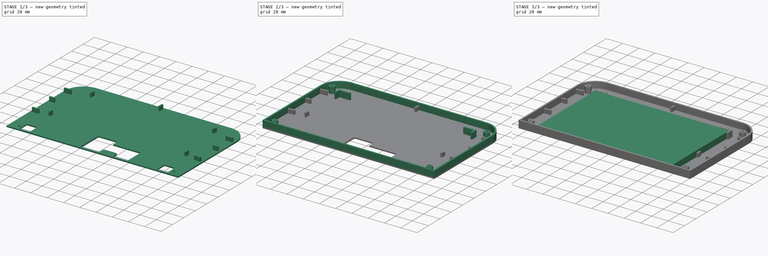
[diagram: build sequence overview — one tinted view per stage of 3, left to right]
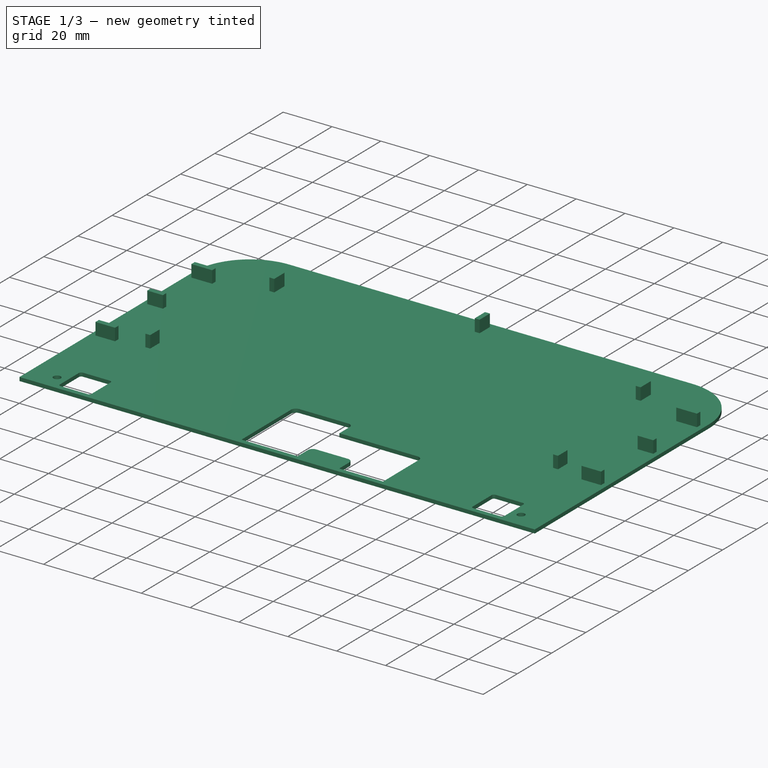
[diagram: stage 1 of 3 — iso view after this stage's code; geometry added in this stage tinted green]
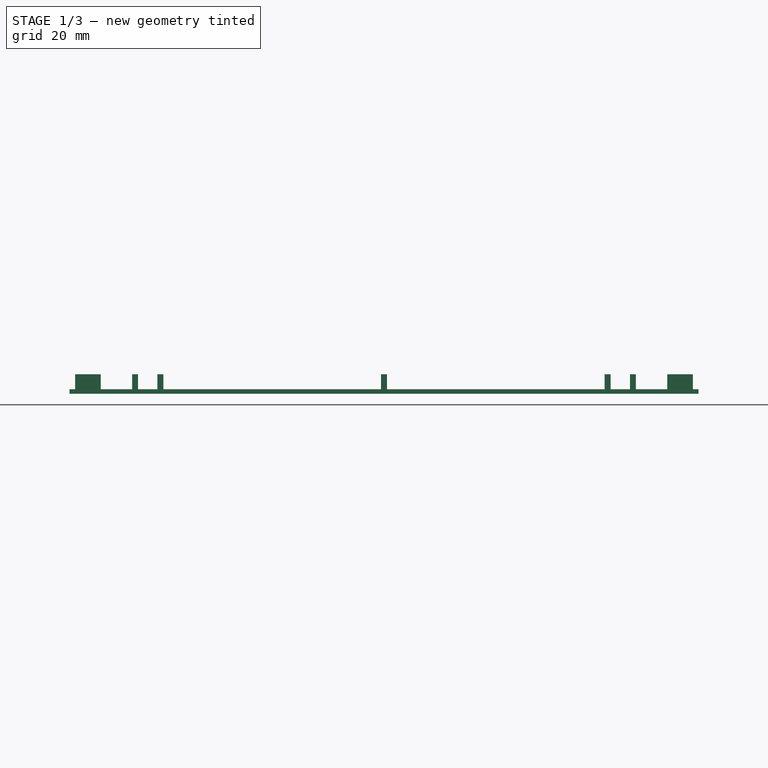
[diagram: stage 1 of 3 — front view after this stage's code; geometry added in this stage tinted green]
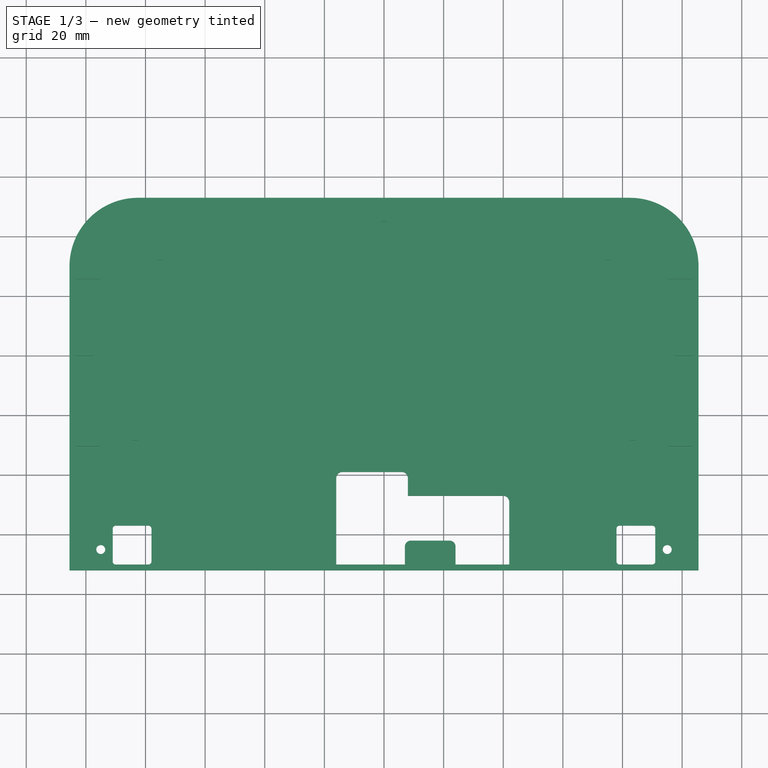
[diagram: stage 1 of 3 — top view after this stage's code; geometry added in this stage tinted green]
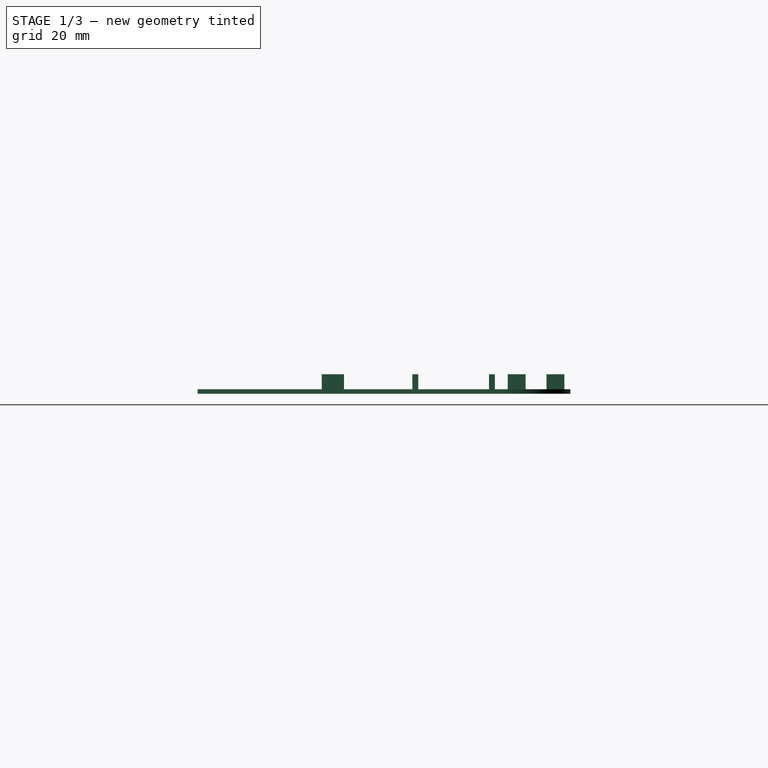
[diagram: stage 1 of 3 — right view after this stage's code; geometry added in this stage tinted green]
FCSTD DOCUMENT  (FreeCAD 0.21R33771 (Git))
Label: 6IN8SHELL-MAIN
License: All rights reserved
LicenseURL: http://en.wikipedia.org/wiki/All_rights_reserved
objects: Part::Feature×5, Sketcher::SketchObject×4, PartDesign::Body×4, PartDesign::Pad×2, Part::Extrusion×2, Part::MultiFuse×2
note: 21 computed .brp shape members not serialized (recipe doc carries the construction recipe); baked Part::Feature solids carry a one-line shape summary decoded from their .brp

FEATURE [PartDesign::Body] Body  label="Screen-6.8"
  Group = -> [Sketch,Pad]
  Origin = -> Origin
  Tip = -> Pad
FEATURE [Sketcher::SketchObject] Sketch002
  FullyConstrained = true
  MapMode = 5
  Support = -> [XY_Plane001]
  sketch-geometry (44):
    g0: LineSegment StartX=-105.5 StartY=-52 StartZ=0 EndX=105.5 EndY=-52 EndZ=0
    g1: LineSegment StartX=105.5 StartY=-52 StartZ=0 EndX=105.5 EndY=50 EndZ=0
    g2: LineSegment StartX=-105.5 StartY=-52 StartZ=0 EndX=-105.5 EndY=50 EndZ=0
    g3: LineSegment StartX=-82.5 StartY=73 StartZ=0 EndX=82.5 EndY=73 EndZ=0
    g4: ArcOfCircle CenterX=-82.5 CenterY=50 CenterZ=0 NormalX=0 NormalY=0 NormalZ=1 AngleXU=0 Radius=23 StartAngle=1.5708 EndAngle=3.14159
    g5: ArcOfCircle CenterX=82.5 CenterY=50 CenterZ=0 NormalX=0 NormalY=0 NormalZ=1 AngleXU=0 Radius=23 StartAngle=0 EndAngle=1.5708
    g6: LineSegment StartX=-14 StartY=-19 StartZ=0 EndX=6 EndY=-19 EndZ=0
    g7: ArcOfCircle CenterX=-14 CenterY=-21 CenterZ=0 NormalX=0 NormalY=0 NormalZ=1 AngleXU=0 Radius=2 StartAngle=1.5708 EndAngle=3.14159
    g8: ArcOfCircle CenterX=40 CenterY=-29 CenterZ=0 NormalX=0 NormalY=0 NormalZ=1 AngleXU=0 Radius=2 StartAngle=6e-16 EndAngle=1.5708
    g9: LineSegment StartX=42 StartY=-29 StartZ=0 EndX=42 EndY=-50 EndZ=0
    g10: LineSegment StartX=22 StartY=-42 StartZ=0 EndX=9 EndY=-42 EndZ=0
    g11: LineSegment StartX=-16 StartY=-50 StartZ=0 EndX=-16 EndY=-21 EndZ=0
    g12: GeomPoint X=42 Y=-42 Z=0
    g13: Circle CenterX=-95 CenterY=-45 CenterZ=0 NormalX=0 NormalY=0 NormalZ=1 AngleXU=0 Radius=1.5
    g14: Circle CenterX=95 CenterY=-45 CenterZ=0 NormalX=0 NormalY=0 NormalZ=1 AngleXU=0 Radius=1.5
    g15: ArcOfCircle CenterX=-90 CenterY=-38 CenterZ=0 NormalX=0 NormalY=0 NormalZ=1 AngleXU=0 Radius=1 StartAngle=1.5708 EndAngle=3.14159
    g16: LineSegment StartX=-90 StartY=-37 StartZ=0 EndX=-79 EndY=-37 EndZ=0
    g17: ArcOfCircle CenterX=-79 CenterY=-38 CenterZ=0 NormalX=0 NormalY=0 NormalZ=1 AngleXU=0 Radius=1 StartAngle=3.6e-15 EndAngle=1.5708
    g18: LineSegment StartX=-78 StartY=-38 StartZ=0 EndX=-78 EndY=-49 EndZ=0
    g19: ArcOfCircle CenterX=-79 CenterY=-49 CenterZ=0 NormalX=0 NormalY=0 NormalZ=1 AngleXU=0 Radius=1 StartAngle=4.71239 EndAngle=6.28319
    g20: LineSegment StartX=-79 StartY=-50 StartZ=0 EndX=-90 EndY=-50 EndZ=0
    g21: ArcOfCircle CenterX=-90 CenterY=-49 CenterZ=0 NormalX=0 NormalY=0 NormalZ=1 AngleXU=0 Radius=1 StartAngle=3.14159 EndAngle=4.71239
    g22: LineSegment StartX=-91 StartY=-49 StartZ=0 EndX=-91 EndY=-38 EndZ=0
    g23: GeomPoint X=-91 Y=-37 Z=0
    g24: GeomPoint X=-78 Y=-50 Z=0
    g25: ArcOfCircle CenterX=90 CenterY=-38 CenterZ=0 NormalX=0 NormalY=0 NormalZ=1 AngleXU=0 Radius=1 StartAngle=-1.8e-15 EndAngle=1.5708
    g26: LineSegment StartX=90 StartY=-37 StartZ=0 EndX=79 EndY=-37 EndZ=0
    g27: ArcOfCircle CenterX=79 CenterY=-38 CenterZ=0 NormalX=0 NormalY=0 NormalZ=1 AngleXU=0 Radius=1 StartAngle=1.5708 EndAngle=3.14159
    g28: LineSegment StartX=78 StartY=-38 StartZ=0 EndX=78 EndY=-49 EndZ=0
    g29: ArcOfCircle CenterX=79 CenterY=-49 CenterZ=0 NormalX=0 NormalY=0 NormalZ=1 AngleXU=0 Radius=1 StartAngle=3.14159 EndAngle=4.71239
    g30: LineSegment StartX=79 StartY=-50 StartZ=0 EndX=90 EndY=-50 EndZ=0
    g31: ArcOfCircle CenterX=90 CenterY=-49 CenterZ=0 NormalX=0 NormalY=0 NormalZ=1 AngleXU=0 Radius=1 StartAngle=4.71239 EndAngle=6.28319
    g32: LineSegment StartX=91 StartY=-49 StartZ=0 EndX=91 EndY=-38 EndZ=0
    g33: GeomPoint X=91 Y=-37 Z=0
    g34: GeomPoint X=78 Y=-50 Z=0
    g35: ArcOfCircle CenterX=22 CenterY=-44 CenterZ=0 NormalX=0 NormalY=0 NormalZ=1 AngleXU=0 Radius=2 StartAngle=6.28318 EndAngle=7.85398
    g36: LineSegment StartX=24 StartY=-44 StartZ=0 EndX=24 EndY=-50 EndZ=0
    g37: LineSegment StartX=24 StartY=-50 StartZ=0 EndX=42 EndY=-50 EndZ=0
    g38: LineSegment StartX=-16 StartY=-50 StartZ=0 EndX=7 EndY=-50 EndZ=0
    g39: ArcOfCircle CenterX=9 CenterY=-44 CenterZ=0 NormalX=0 NormalY=0 NormalZ=1 AngleXU=0 Radius=2 StartAngle=1.5708 EndAngle=3.1416
    g40: LineSegment StartX=7 StartY=-44 StartZ=0 EndX=7 EndY=-50 EndZ=0
    g41: LineSegment StartX=40 StartY=-27 StartZ=0 EndX=8 EndY=-27 EndZ=0
    g42: ArcOfCircle CenterX=6 CenterY=-21 CenterZ=0 NormalX=0 NormalY=0 NormalZ=1 AngleXU=0 Radius=2 StartAngle=6e-16 EndAngle=1.5708
    g43: LineSegment StartX=8 StartY=-21 StartZ=0 EndX=8 EndY=-27 EndZ=0
  constraints (117):
    c: Coincident(g1,g0)
    c: Vertical(g1)
    c: Coincident(g0,g2)
    c: Symmetric(g0,g0,g-2)
    c: DistanceY(g0,g-1) = 52
    c: DistanceX(g0,g-1) = 105.5
    c: Symmetric(g3,g3,g-2)
    c: DistanceY(g-1,g3) = 73
    c: Coincident(g2,g4)
    c: Coincident(g4,g3)
    c: DistanceX(g4,g-1) = 82.5
    c: Equal(g2,g1)
    c: DistanceY(g-1,g2) = 50
    c: Coincident(g5,g1)
    c: Coincident(g5,g3)
    c: Symmetric(g5,g4,g-2)
    c: Horizontal(g6)
    c: Tangent(g5,g3,g3) = 1.5708
    c: Tangent(g8,g9) = 1.5708
    c: Tangent(g11,g7) = 1.5708
    c: Horizontal(g10)
    c: Vertical(g9)
    c: Vertical(g11)
    c: Equal(g7,g8)
    c: PointOnObject(g12,g9)
    c: PointOnObject(g12,g10)
    c: DistanceY(g0,g10) = 10
    c: Radius(g13) = 1.5
    c: DistanceX(g13,g-1) = 95
    c: DistanceY(g13,g-1) = 45
    c: Symmetric(g13,g14,g-2)
    c: Tangent(g15,g16) = 1.5708
    c: Tangent(g16,g17) = 1.5708
    c: Tangent(g17,g18) = 1.5708
    c: Tangent(g18,g19) = 1.5708
    c: Tangent(g19,g20) = 1.5708
    c: Tangent(g20,g21) = 1.5708
    c: Tangent(g21,g22) = 1.5708
    c: Tangent(g22,g15) = 1.5708
    c: Horizontal(g16)
    c: Horizontal(g20)
    c: Vertical(g18)
    c: Vertical(g22)
    c: Equal(g15,g17)
    c: Equal(g17,g19)
    c: Equal(g19,g21)
    c: PointOnObject(g23,g16)
    c: PointOnObject(g23,g22)
    c: PointOnObject(g24,g18)
    c: PointOnObject(g24,g20)
    c: DistanceY(g22,g22) = 11
    c: DistanceX(g16,g16) = 11
    c: Radius(g15) = 1
    c: DistanceX(g13,g21) = 4
    c: DistanceY(g13,g15) = 7
    c: Equal(g13,g14)
    c: Tangent(g25,g26) = -1.5708
    c: Tangent(g26,g27) = -1.5708
    c: Tangent(g27,g28) = -1.5708
    c: Tangent(g28,g29) = -1.5708
    c: Tangent(g29,g30) = -1.5708
    c: Tangent(g30,g31) = -1.5708
    c: Tangent(g31,g32) = -1.5708
    c: Tangent(g32,g25) = -1.5708
    c: Horizontal(g26)
    c: Horizontal(g30)
    c: Vertical(g28)
    c: Vertical(g32)
    c: Equal(g25,g27)
    c: Equal(g27,g29)
    c: Equal(g29,g31)
    c: PointOnObject(g33,g26)
    c: PointOnObject(g33,g32)
    c: PointOnObject(g34,g28)
    c: PointOnObject(g34,g30)
    c: Radius(g25) = 1
    c: Symmetric(g27,g17,g-2)
    c: DistanceY(g28,g28) = 11
    c: DistanceX(g26,g26) = 11
    c: DistanceY(g9,g9) = 21
    c: Coincident(g35,g10)
    c: Radius(g35) = 2
    c: Tangent(g10,g35,g10) = -1.5708
    c: Coincident(g36,g35)
    c: Vertical(g36)
    c: Coincident(g37,g36)
    c: Coincident(g37,g9)
    c: Horizontal(g37)
    c: DistanceY(g36,g36) = 6
    c: DistanceX(g37,g37) = 18
    c: DistanceX(g-1,g36) = 24
    c: DistanceX(g7,g-1) = 16
    c: DistanceX(g10,g10) = 13
    c: DistanceY(g11,g11) = 29
    c: Coincident(g38,g11)
    c: Horizontal(g38)
    c: Coincident(g39,g10)
    c: Radius(g39) = 2
    c: Tangent(g10,g39,g10) = -1.5708
    c: Coincident(g40,g39)
    c: Vertical(g40)
    c: Coincident(g38,g40)
    c: DistanceX(g38,g38) = 23
    c: Horizontal(g41)
    c: DistanceY(g38,g39) = 6
    c: Coincident(g42,g6)
    c: Radius(g42) = 2
    c: Tangent(g6,g42,g6) = 1.5708
    c: Vertical(g43)
    c: Tangent(g42,g43) = 1.5708
    c: Coincident(g41,g43)
    c: DistanceY(g43,g43) = 6
    c: DistanceX(g41,g41) = 32
    c: Tangent(g41,g8) = -1.5708
    c: Coincident(g6,g7)
    c: DistanceX(g6,g6) = 20
    c: Radius(g7) = 2
FEATURE [PartDesign::Pad] Pad001
  Direction = (0,0,1)
  Length = 1.5
  Length2 = 10
  Profile = -> Sketch002
  ReferenceAxis = -> Sketch002 [N_Axis]
  Reversed = true
  Type = 0
FEATURE [PartDesign::Body] Body002
  Group = -> [Sketch003]
  Origin = -> Origin002
FEATURE [Sketcher::SketchObject] Sketch004
  FullyConstrained = true
  MapMode = 5
  Support = -> [XY_Plane003]
  sketch-geometry (45):
    g0: LineSegment StartX=-103.5 StartY=47.7 StartZ=0 EndX=-95 EndY=47.7 EndZ=0
    g1: LineSegment StartX=-95 StartY=47.7 StartZ=0 EndX=-95 EndY=45.7 EndZ=0
    g2: LineSegment StartX=-95 StartY=45.7 StartZ=0 EndX=-103.5 EndY=45.7 EndZ=0
    g3: LineSegment StartX=-103.5 StartY=45.7 StartZ=0 EndX=-103.5 EndY=47.7 EndZ=0
    g4: LineSegment StartX=103.5 StartY=47.7 StartZ=0 EndX=95 EndY=47.7 EndZ=0
    g5: LineSegment StartX=95 StartY=47.7 StartZ=0 EndX=95 EndY=45.7 EndZ=0
    g6: LineSegment StartX=95 StartY=45.7 StartZ=0 EndX=103.5 EndY=45.7 EndZ=0
    g7: LineSegment StartX=103.5 StartY=45.7 StartZ=0 EndX=103.5 EndY=47.7 EndZ=0
    g8: LineSegment StartX=-103.5 StartY=-8.4 StartZ=0 EndX=-95.5 EndY=-8.4 EndZ=0
    g9: LineSegment StartX=-95.5 StartY=-8.4 StartZ=0 EndX=-95.5 EndY=-10.4 EndZ=0
    g10: LineSegment StartX=-95.5 StartY=-10.4 StartZ=0 EndX=-103.5 EndY=-10.4 EndZ=0
    g11: LineSegment StartX=-103.5 StartY=-10.4 StartZ=0 EndX=-103.5 EndY=-8.4 EndZ=0
    g12: LineSegment StartX=-84.5 StartY=-2.9 StartZ=0 EndX=-82.5 EndY=-2.9 EndZ=0
    g13: LineSegment StartX=-82.5 StartY=-2.9 StartZ=0 EndX=-82.5 EndY=-8.4 EndZ=0
    g14: LineSegment StartX=-82.5 StartY=-8.4 StartZ=0 EndX=-84.5 EndY=-8.4 EndZ=0
    g15: LineSegment StartX=-84.5 StartY=-8.4 StartZ=0 EndX=-84.5 EndY=-2.9 EndZ=0
    g16: LineSegment StartX=103.5 StartY=-8.4 StartZ=0 EndX=95.5 EndY=-8.4 EndZ=0
    g17: LineSegment StartX=95.5 StartY=-8.4 StartZ=0 EndX=95.5 EndY=-10.4 EndZ=0
    g18: LineSegment StartX=95.5 StartY=-10.4 StartZ=0 EndX=103.5 EndY=-10.4 EndZ=0
    g19: LineSegment StartX=103.5 StartY=-10.4 StartZ=0 EndX=103.5 EndY=-8.4 EndZ=0
    g20: LineSegment StartX=84.5 StartY=-2.9 StartZ=0 EndX=82.5 EndY=-2.9 EndZ=0
    g21: LineSegment StartX=82.5 StartY=-2.9 StartZ=0 EndX=82.5 EndY=-8.4 EndZ=0
    g22: LineSegment StartX=82.5 StartY=-8.4 StartZ=0 EndX=84.5 EndY=-8.4 EndZ=0
    g23: LineSegment StartX=84.5 StartY=-8.4 StartZ=0 EndX=84.5 EndY=-2.9 EndZ=0
    g24: LineSegment StartX=-76 StartY=58 StartZ=0 EndX=-74 EndY=58 EndZ=0
    g25: LineSegment StartX=-74 StartY=58 StartZ=0 EndX=-74 EndY=52 EndZ=0
    g26: LineSegment StartX=-74 StartY=52 StartZ=0 EndX=-76 EndY=52 EndZ=0
    g27: LineSegment StartX=-76 StartY=52 StartZ=0 EndX=-76 EndY=58 EndZ=0
    g28: LineSegment StartX=76 StartY=58 StartZ=0 EndX=74 EndY=58 EndZ=0
    g29: LineSegment StartX=74 StartY=58 StartZ=0 EndX=74 EndY=52 EndZ=0
    g30: LineSegment StartX=74 StartY=52 StartZ=0 EndX=76 EndY=52 EndZ=0
    g31: LineSegment StartX=76 StartY=52 StartZ=0 EndX=76 EndY=58 EndZ=0
    g32: LineSegment StartX=-103.6 StartY=22 StartZ=0 EndX=-97.2 EndY=22 EndZ=0
    g33: LineSegment StartX=-97.2 StartY=22 StartZ=0 EndX=-97.2 EndY=20 EndZ=0
    g34: LineSegment StartX=-97.2 StartY=20 StartZ=0 EndX=-103.6 EndY=20 EndZ=0
    g35: LineSegment StartX=-103.6 StartY=20 StartZ=0 EndX=-103.6 EndY=22 EndZ=0
    g36: LineSegment StartX=103.6 StartY=22 StartZ=0 EndX=97.2 EndY=22 EndZ=0
    g37: LineSegment StartX=97.2 StartY=22 StartZ=0 EndX=97.2 EndY=20 EndZ=0
    g38: LineSegment StartX=97.2 StartY=20 StartZ=0 EndX=103.6 EndY=20 EndZ=0
    g39: LineSegment StartX=103.6 StartY=20 StartZ=0 EndX=103.6 EndY=22 EndZ=0
    g40: LineSegment StartX=-1 StartY=71 StartZ=0 EndX=-1 EndY=65 EndZ=0
    g41: LineSegment StartX=-1 StartY=65 StartZ=0 EndX=1 EndY=65 EndZ=0
    g42: LineSegment StartX=1 StartY=65 StartZ=0 EndX=1 EndY=71 EndZ=0
    g43: LineSegment StartX=1 StartY=71 StartZ=0 EndX=-1 EndY=71 EndZ=0
    g44: GeomPoint X=0 Y=68 Z=0
  constraints (133):
    c: Coincident(g0,g1)
    c: Coincident(g1,g2)
    c: Coincident(g2,g3)
    c: Coincident(g3,g0)
    c: Horizontal(g0)
    c: Horizontal(g2)
    c: Vertical(g1)
    c: Vertical(g3)
    c: DistanceY(g1,g1) = 2
    c: DistanceX(g2,g2) = 8.5
    c: DistanceX(g2,g-1) = 103.5
    c: DistanceY(g-1,g1) = 45.7
    c: Coincident(g4,g5)
    c: Coincident(g5,g6)
    c: Coincident(g6,g7)
    c: Coincident(g7,g4)
    c: Horizontal(g4)
    c: Horizontal(g6)
    c: Vertical(g5)
    c: Vertical(g7)
    c: DistanceX(g4,g4) = 8.5
    c: DistanceY(g5,g5) = 2
    c: DistanceX(g-1,g6) = 103.5
    c: DistanceY(g-1,g6) = 45.7
    c: Coincident(g8,g9)
    c: Coincident(g9,g10)
    c: Coincident(g10,g11)
    c: Coincident(g11,g8)
    c: Horizontal(g8)
    c: Horizontal(g10)
    c: Vertical(g9)
    c: Vertical(g11)
    c: Coincident(g12,g13)
    c: Coincident(g13,g14)
    c: Coincident(g14,g15)
    c: Coincident(g15,g12)
    c: Horizontal(g12)
    c: Horizontal(g14)
    c: Vertical(g13)
    c: Vertical(g15)
    c: DistanceX(g12,g12) = 2
    c: DistanceX(g12,g-1) = 84.5
    c: DistanceY(g13,g13) = 5.5
    c: DistanceY(g9,g9) = 2
    c: DistanceX(g8,g8) = 8
    c: DistanceX(g8,g-1) = 95.5
    c: DistanceY(g8,g-1) = 8.4
    c: Horizontal(g8,g14)
    c: Coincident(g16,g17)
    c: Coincident(g17,g18)
    c: Coincident(g18,g19)
    c: Coincident(g19,g16)
    c: Horizontal(g16)
    c: Horizontal(g18)
    c: Vertical(g17)
    c: Vertical(g19)
    c: Coincident(g20,g21)
    c: Coincident(g21,g22)
    c: Coincident(g22,g23)
    c: Coincident(g23,g20)
    c: Horizontal(g20)
    c: Horizontal(g22)
    c: Vertical(g21)
    c: Vertical(g23)
    c: DistanceX(g20,g20) = 2
    c: DistanceY(g21,g21) = 5.5
    c: DistanceY(g17,g17) = 2
    c: DistanceX(g16,g16) = 8
    c: Horizontal(g22,g16)
    c: DistanceY(g17,g-1) = 10.4
    c: DistanceX(g-1,g17) = 95.5
    c: DistanceX(g22,g16) = 11
    c: Coincident(g24,g25)
    c: Coincident(g25,g26)
    c: Coincident(g26,g27)
    c: Coincident(g27,g24)
    c: Horizontal(g24)
    c: Horizontal(g26)
    c: Vertical(g25)
    c: Vertical(g27)
    c: DistanceX(g24,g24) = 2
    c: DistanceY(g27,g27) = 6
    c: DistanceY(g-1,g25) = 52
    c: DistanceX(g25,g-1) = 74
    c: Coincident(g28,g29)
    c: Coincident(g29,g30)
    c: Coincident(g30,g31)
    c: Coincident(g31,g28)
    c: Horizontal(g28)
    c: Horizontal(g30)
    c: Vertical(g29)
    c: Vertical(g31)
    c: DistanceX(g-1,g29) = 74
    c: DistanceY(g-1,g29) = 52
    c: DistanceX(g28,g28) = 2
    c: DistanceY(g31,g31) = 6
    c: Coincident(g32,g33)
    c: Coincident(g33,g34)
    c: Coincident(g34,g35)
    c: Coincident(g35,g32)
    c: Horizontal(g32)
    c: Horizontal(g34)
    c: Vertical(g33)
    c: Vertical(g35)
    c: DistanceY(g33,g33) = 2
    c: DistanceX(g32,g32) = 6.4
    c: DistanceY(g-1,g33) = 20
    c: DistanceX(g33,g-1) = 97.2
    c: Coincident(g36,g37)
    c: Coincident(g37,g38)
    c: Coincident(g38,g39)
    c: Coincident(g39,g36)
    c: Horizontal(g36)
    c: Horizontal(g38)
    c: Vertical(g37)
    c: Vertical(g39)
    c: DistanceY(g37,g37) = 2
    c: DistanceX(g36,g36) = 6.4
    c: DistanceX(g37) = 97.2
    c: DistanceY(g37) = 20
    c: Coincident(g40,g41)
    c: Coincident(g41,g42)
    c: Coincident(g42,g43)
    c: Coincident(g43,g40)
    c: Horizontal(g41)
    c: Horizontal(g43)
    c: Vertical(g40)
    c: Vertical(g42)
    c: Symmetric(g41,g40,g44)
    c: PointOnObject(g44,g-2)
    c: DistanceY(g42,g42) = 6
    c: DistanceX(g41,g41) = 2
    c: DistanceY(g-1,g40) = 65
FEATURE [Part::Extrusion] Extrude001
  Base = -> Sketch004
  Dir = (0,0,1)
  DirMode = 2
  FaceMakerClass = Part::FaceMakerBullseye
  LengthFwd = 5
  LengthRev = 0
  Solid = true
  Symmetric = false
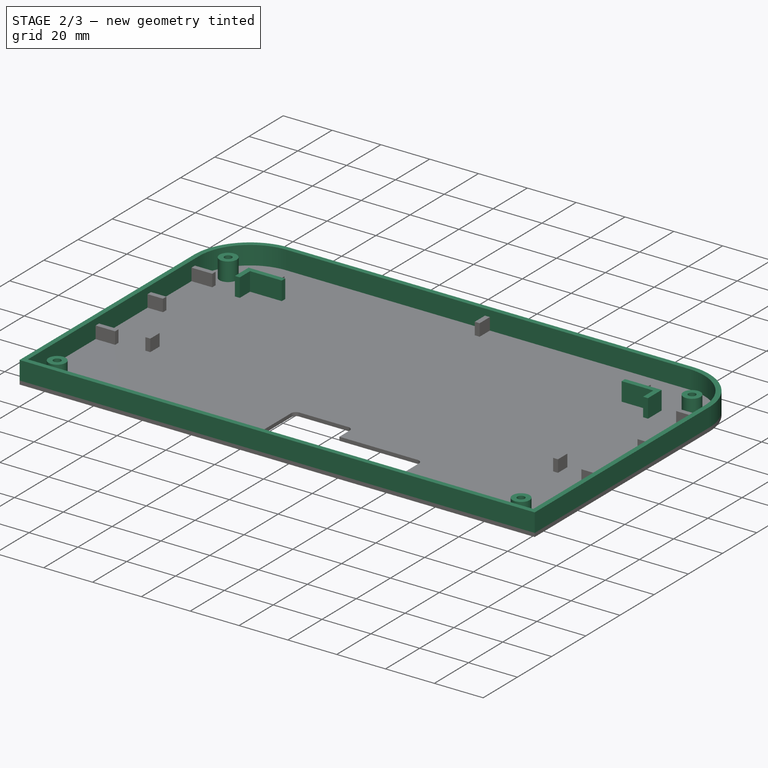
[diagram: stage 2 of 3 — iso view after this stage's code; geometry added in this stage tinted green]
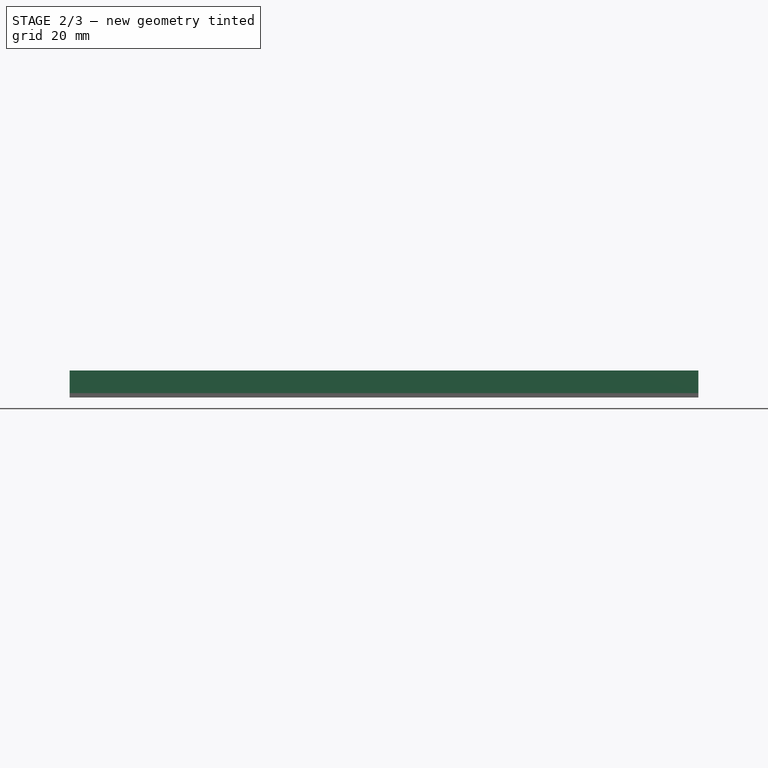
[diagram: stage 2 of 3 — front view after this stage's code; geometry added in this stage tinted green]
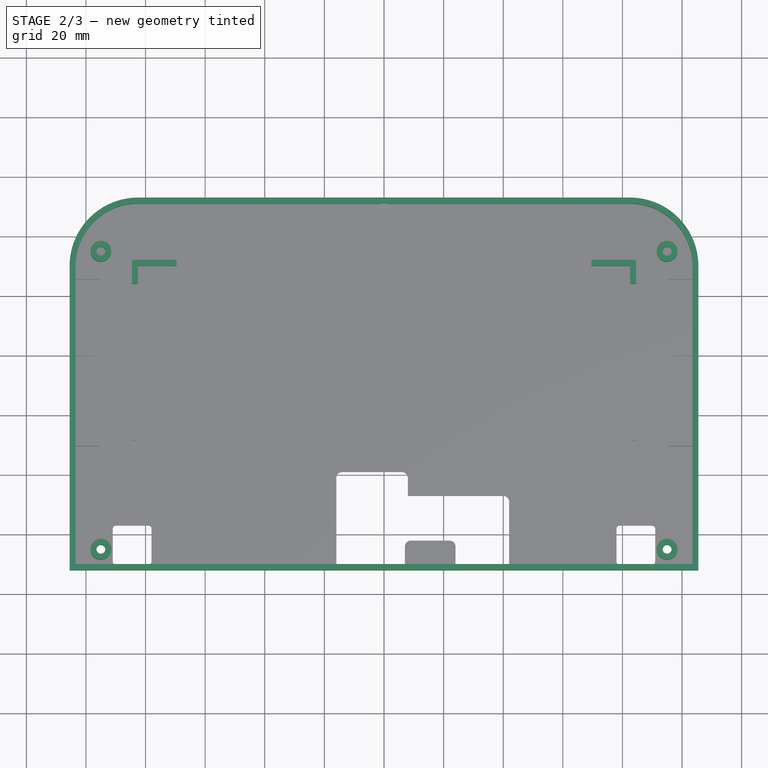
[diagram: stage 2 of 3 — top view after this stage's code; geometry added in this stage tinted green]
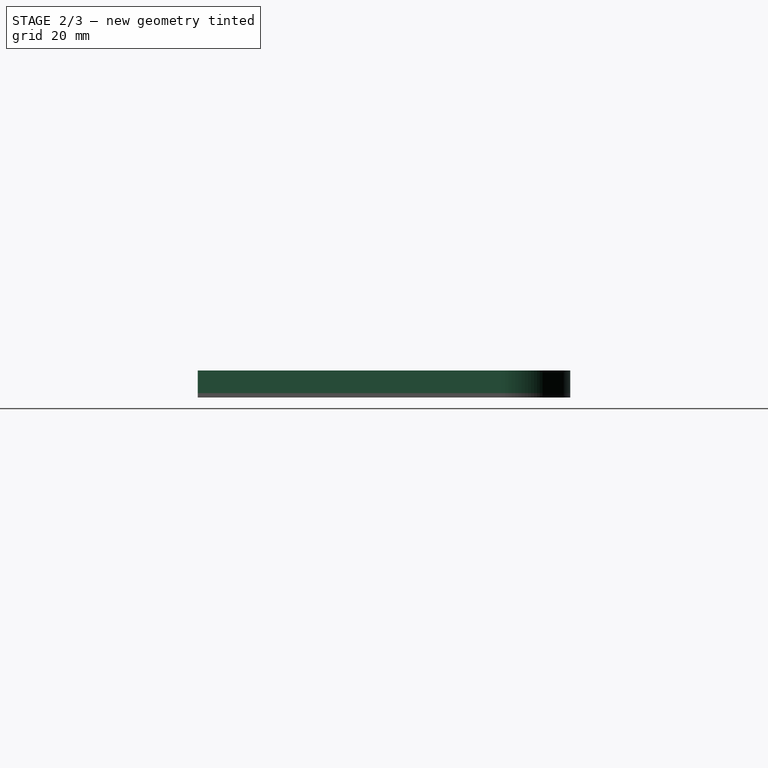
[diagram: stage 2 of 3 — right view after this stage's code; geometry added in this stage tinted green]
FEATURE [PartDesign::Body] Body001  label="Body"
  Group = -> [Sketch002,Pad001]
  Origin = -> Origin001
  Tip = -> Pad001
FEATURE [Part::Feature] Part__Feature  label="TOP"
  Placement = pos=(0,0,7.4) rot=(0,0,1;0rad)
  shape: bbox 216 x 127.5 x 17 mm, 79 faces (baked)
  expr: .Placement.Base.z = 7.4
FEATURE [Part::Feature] Part__Feature001  label="FORT5-L"
  Placement = pos=(-90.88,39.6,2) rot=(0,0,1;1.5708rad)
  shape: bbox 12.5 x 54.25 x 6.8 mm, 36 faces (baked)
FEATURE [Part::Feature] Part__Feature002  label="FORT5-R"
  Placement = pos=(90.88,39.6,2) rot=(0,0,1;1.5708rad)
  shape: bbox 12.5 x 54.25 x 6.8 mm, 36 faces (baked)
FEATURE [Part::Feature] Part__Feature003  label="FORT14"
  Placement = pos=(68,59,0) rot=(0,0,1;0rad)
  shape: bbox 148.3 x 12.45 x 6.8 mm, 72 faces (baked)
FEATURE [Part::Feature] Part__Feature004  label="BACK"
  Placement = pos=(0,0,-1.5) rot=(0,1,0;3.14159rad)
  shape: bbox 211 x 40 x 18 mm, 59 faces (baked)
FEATURE [Sketcher::SketchObject] Sketch003
  FullyConstrained = true
  MapMode = 5
  Support = -> [XY_Plane002]
  sketch-geometry (32):
    g0: LineSegment StartX=-105.5 StartY=-52 StartZ=0 EndX=105.5 EndY=-52 EndZ=0
    g1: LineSegment StartX=105.5 StartY=-52 StartZ=0 EndX=105.5 EndY=50 EndZ=0
    g2: LineSegment StartX=-105.5 StartY=-52 StartZ=0 EndX=-105.5 EndY=50 EndZ=0
    g3: LineSegment StartX=-82.5 StartY=73 StartZ=0 EndX=82.5 EndY=73 EndZ=0
    g4: ArcOfCircle CenterX=-82.5 CenterY=50 CenterZ=0 NormalX=0 NormalY=0 NormalZ=1 AngleXU=0 Radius=23 StartAngle=1.5708 EndAngle=3.14159
    g5: ArcOfCircle CenterX=82.5 CenterY=50 CenterZ=0 NormalX=0 NormalY=0 NormalZ=1 AngleXU=0 Radius=23 StartAngle=1e-16 EndAngle=1.5708
    g6: LineSegment StartX=-103.5 StartY=-50 StartZ=0 EndX=103.5 EndY=-50 EndZ=0
    g7: LineSegment StartX=103.5 StartY=-50 StartZ=0 EndX=103.5 EndY=50 EndZ=0
    g8: LineSegment StartX=-103.5 StartY=-50 StartZ=0 EndX=-103.5 EndY=50 EndZ=0
    g9: ArcOfCircle CenterX=-82.5 CenterY=50 CenterZ=0 NormalX=0 NormalY=0 NormalZ=1 AngleXU=0 Radius=21 StartAngle=1.5708 EndAngle=3.14159
    g10: ArcOfCircle CenterX=82.5 CenterY=50 CenterZ=0 NormalX=0 NormalY=0 NormalZ=1 AngleXU=0 Radius=21 StartAngle=0 EndAngle=1.5708
    g11: LineSegment StartX=-82.5 StartY=71 StartZ=0 EndX=82.5 EndY=71 EndZ=0
    g12: LineSegment StartX=-84.6 StartY=44.1 StartZ=0 EndX=-82.6 EndY=44.1 EndZ=0
    g13: LineSegment StartX=-82.6 StartY=44.1 StartZ=0 EndX=-82.6 EndY=50.1 EndZ=0
    g14: LineSegment StartX=-84.6 StartY=52.1 StartZ=0 EndX=-84.6 EndY=44.1 EndZ=0
    g15: LineSegment StartX=-84.6 StartY=52.1 StartZ=0 EndX=-69.6 EndY=52.1 EndZ=0
    g16: LineSegment StartX=-69.6 StartY=52.1 StartZ=0 EndX=-69.6 EndY=50.1 EndZ=0
    g17: LineSegment StartX=-69.6 StartY=50.1 StartZ=0 EndX=-82.6 EndY=50.1 EndZ=0
    g18: LineSegment StartX=84.6 StartY=44.1 StartZ=0 EndX=82.6 EndY=44.1 EndZ=0
    g19: LineSegment StartX=82.6 StartY=44.1 StartZ=0 EndX=82.6 EndY=50.1 EndZ=0
    g20: LineSegment StartX=84.6 StartY=52.1 StartZ=0 EndX=84.6 EndY=44.1 EndZ=0
    g21: LineSegment StartX=84.6 StartY=52.1 StartZ=0 EndX=69.6 EndY=52.1 EndZ=0
    g22: LineSegment StartX=69.6 StartY=52.1 StartZ=0 EndX=69.6 EndY=50.1 EndZ=0
    g23: LineSegment StartX=69.6 StartY=50.1 StartZ=0 EndX=82.6 EndY=50.1 EndZ=0
    g24: Circle CenterX=-95 CenterY=-45 CenterZ=0 NormalX=0 NormalY=0 NormalZ=1 AngleXU=0 Radius=1.5
    g25: Circle CenterX=-95 CenterY=-45 CenterZ=0 NormalX=0 NormalY=0 NormalZ=1 AngleXU=0 Radius=3.5
    g26: Circle CenterX=95 CenterY=-45 CenterZ=0 NormalX=0 NormalY=0 NormalZ=1 AngleXU=0 Radius=1.5
    g27: Circle CenterX=95 CenterY=-45 CenterZ=0 NormalX=0 NormalY=0 NormalZ=1 AngleXU=0 Radius=3.5
    g28: Circle CenterX=-95 CenterY=55 CenterZ=0 NormalX=0 NormalY=0 NormalZ=1 AngleXU=0 Radius=1.5
    g29: Circle CenterX=-95 CenterY=55 CenterZ=0 NormalX=0 NormalY=0 NormalZ=1 AngleXU=0 Radius=3.5
    g30: Circle CenterX=95 CenterY=55 CenterZ=0 NormalX=0 NormalY=0 NormalZ=1 AngleXU=0 Radius=1.5
    g31: Circle CenterX=95 CenterY=55 CenterZ=0 NormalX=0 NormalY=0 NormalZ=1 AngleXU=0 Radius=3.5
  constraints (90):
    c: Coincident(g1,g0)
    c: Vertical(g1)
    c: Coincident(g0,g2)
    c: Symmetric(g0,g0,g-2)
    c: DistanceY(g0,g-1) = 52
    c: DistanceX(g0,g-1) = 105.5
    c: Symmetric(g3,g3,g-2)
    c: DistanceY(g-1,g3) = 73
    c: Coincident(g2,g4)
    c: Coincident(g4,g3)
    c: DistanceX(g4,g-1) = 82.5
    c: Equal(g2,g1)
    c: DistanceY(g-1,g2) = 50
    c: Coincident(g5,g1)
    c: Coincident(g5,g3)
    c: Symmetric(g5,g4,g-2)
    c: Tangent(g5,g3,g3) = 1.5708
    c: Horizontal(g6)
    c: Coincident(g7,g6)
    c: Vertical(g7)
    c: Coincident(g8,g6)
    c: Vertical(g8)
    c: DistanceX(g6,g-1) = 103.5
    c: DistanceY(g6,g-1) = 50
    c: Symmetric(g8,g7,g-2)
    c: DistanceY(g8,g8) = 100
    c: Coincident(g9,g4)
    c: Coincident(g9,g8)
    c: Coincident(g11,g9)
    c: Coincident(g11,g10)
    c: Tangent(g11,g10,g10) = 1.5708
    c: Tangent(g9,g11,g9) = 1.5708
    c: Symmetric(g9,g10,g-2)
    c: Tangent(g7,g10,g7) = -1.5708
    c: Angle(g10) = 1.5708
    c: Coincident(g12,g13)
    c: Coincident(g14,g12)
    c: Horizontal(g12)
    c: Vertical(g13)
    c: Vertical(g14)
    c: Coincident(g15,g16)
    c: Coincident(g16,g17)
    c: Horizontal(g15)
    c: Horizontal(g17)
    c: Vertical(g16)
    c: DistanceY(g14,g14) = 8
    c: DistanceY(g16,g16) = 2
    c: DistanceX(g12,g12) = 2
    c: Coincident(g17,g13)
    c: Coincident(g15,g14)
    c: DistanceX(g15,g15) = 15
    c: DistanceX(g12,g-1) = 82.6
    c: DistanceY(g-1,g16) = 50.1
    c: Coincident(g18,g19)
    c: Coincident(g20,g18)
    c: Horizontal(g18)
    c: Vertical(g19)
    c: Vertical(g20)
    c: Coincident(g21,g22)
    c: Coincident(g22,g23)
    c: Horizontal(g21)
    c: Horizontal(g23)
    c: Vertical(g22)
    c: Coincident(g23,g19)
    c: Coincident(g21,g20)
    c: DistanceY(g22,g22) = 2
    c: DistanceX(g21,g21) = 15
    c: DistanceY(g20,g20) = 8
    c: DistanceX(g-1,g22) = 69.6
    c: DistanceY(g22) = 50.1
    c: Radius(g24) = 1.5
    c: DistanceX(g24,g-1) = 95
    c: DistanceY(g24,g-1) = 45
    c: Coincident(g25,g24)
    c: Radius(g25) = 3.5
    c: Radius(g26) = 1.5
    c: Coincident(g27,g26)
    c: Radius(g27) = 3.5
    c: Symmetric(g24,g26,g-2)
    c: Equal(g24,g28) = 1.5
    c: Coincident(g29,g28)
    c: Equal(g25,g29) = 3.5
    c: DistanceX(g28,g24) = 0
    c: DistanceY(g24,g28) = 100
    c: Coincident(g31,g30)
    c: DistanceX(g30,g26) = 0
    c: DistanceY(g28,g30) = 0
    c: Radius(g31) = 3.5
    c: Radius(g30) = 1.5
    c: DistanceX(g18,g18) = 2
FEATURE [Part::Extrusion] Extrude
  Base = -> Sketch003
  Dir = (0,0,1)
  DirMode = 2
  FaceMakerClass = Part::FaceMakerBullseye
  LengthFwd = 7.6
  LengthRev = 0
  Solid = true
  Symmetric = false
FEATURE [Part::MultiFuse] Fusion  label="Shell"
  Shapes = -> [Extrude,Body001]
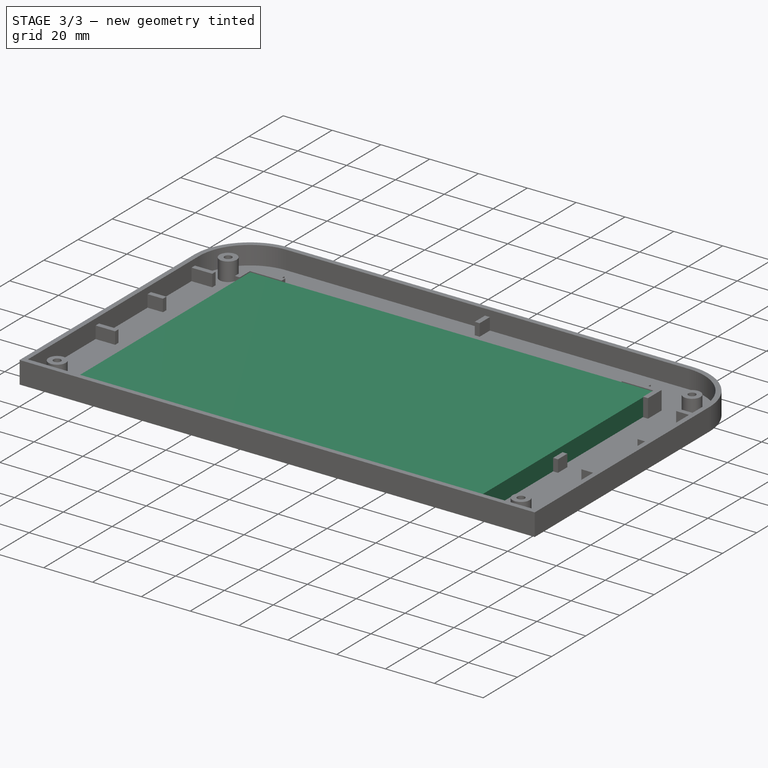
[diagram: stage 3 of 3 — iso view after this stage's code; geometry added in this stage tinted green]
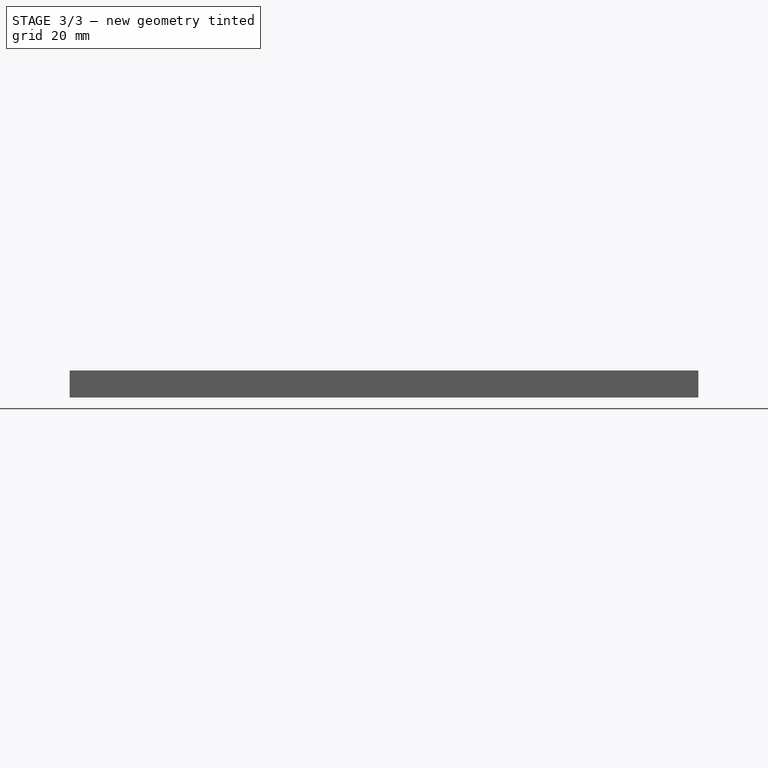
[diagram: stage 3 of 3 — front view after this stage's code; geometry added in this stage tinted green]
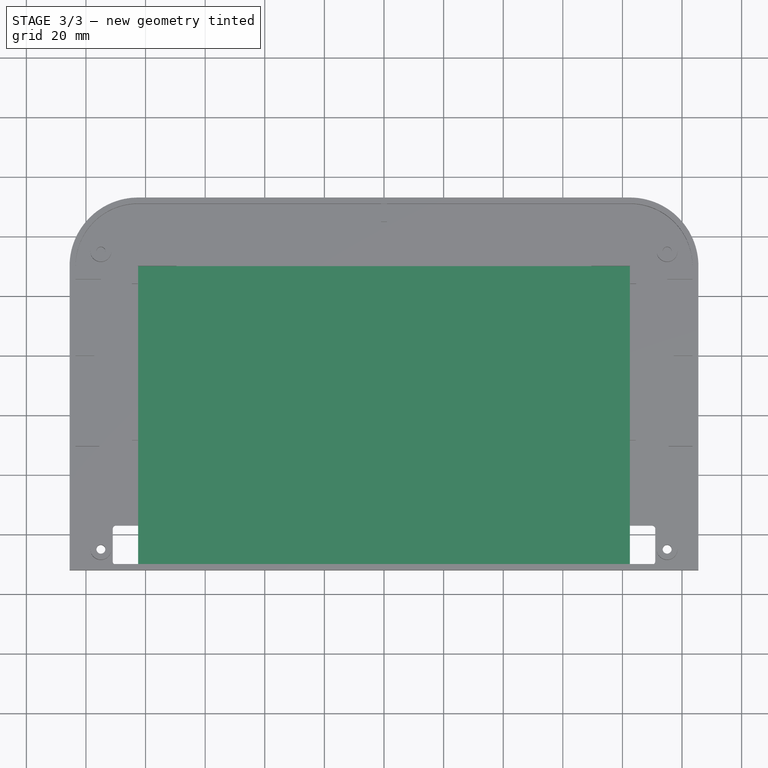
[diagram: stage 3 of 3 — top view after this stage's code; geometry added in this stage tinted green]
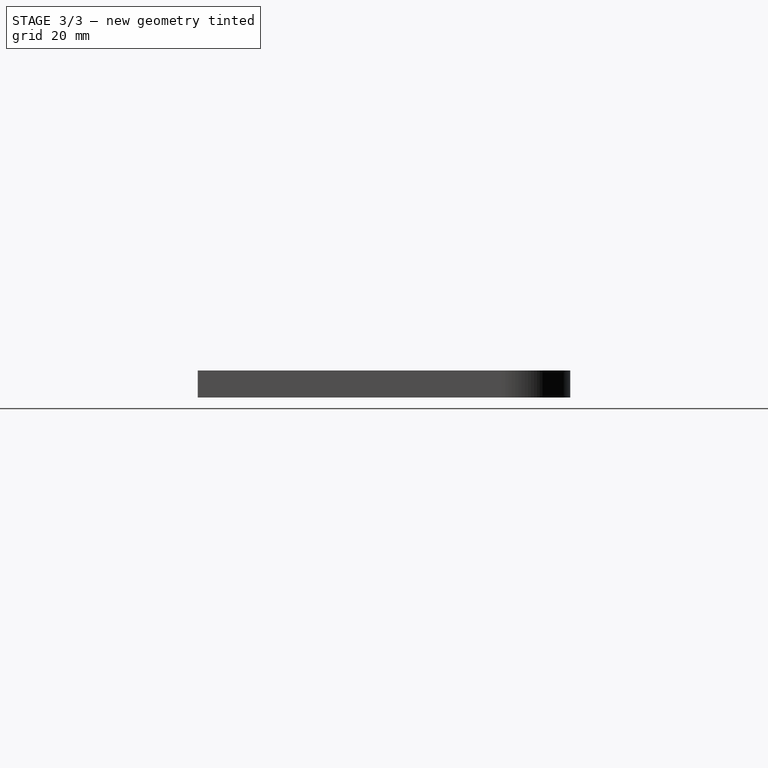
[diagram: stage 3 of 3 — right view after this stage's code; geometry added in this stage tinted green]
FEATURE [Sketcher::SketchObject] Sketch
  FullyConstrained = true
  MapMode = 5
  Support = -> [XY_Plane]
  sketch-geometry (5):
    g0: LineSegment StartX=-82.5 StartY=-50 StartZ=0 EndX=-82.5 EndY=50 EndZ=0
    g1: LineSegment StartX=-82.5 StartY=50 StartZ=0 EndX=82.5 EndY=50 EndZ=0
    g2: LineSegment StartX=82.5 StartY=50 StartZ=0 EndX=82.5 EndY=-50 EndZ=0
    g3: LineSegment StartX=82.5 StartY=-50 StartZ=0 EndX=-82.5 EndY=-50 EndZ=0
    g4: GeomPoint X=0 Y=0 Z=0
  constraints (12):
    c: Coincident(g0,g1)
    c: Coincident(g1,g2)
    c: Coincident(g2,g3)
    c: Coincident(g3,g0)
    c: Horizontal(g1)
    c: Horizontal(g3)
    c: Vertical(g0)
    c: Vertical(g2)
    c: Symmetric(g1,g0,g4)
    c: Coincident(g4,g-1)
    c: DistanceX(g1,g1) = 165
    c: DistanceY(g0,g0) = 100
FEATURE [PartDesign::Pad] Pad
  Direction = (0,0,1)
  Length = 7.3
  Length2 = 10
  Profile = -> Sketch
  ReferenceAxis = -> Sketch [N_Axis]
  Type = 0
FEATURE [Part::MultiFuse] Fusion001  label="MAIN"
  Shapes = -> [Fusion,Extrude001]
FEATURE [PartDesign::Body] Body003  label="HOLDER"
  Group = -> [Sketch004]
  Origin = -> Origin003
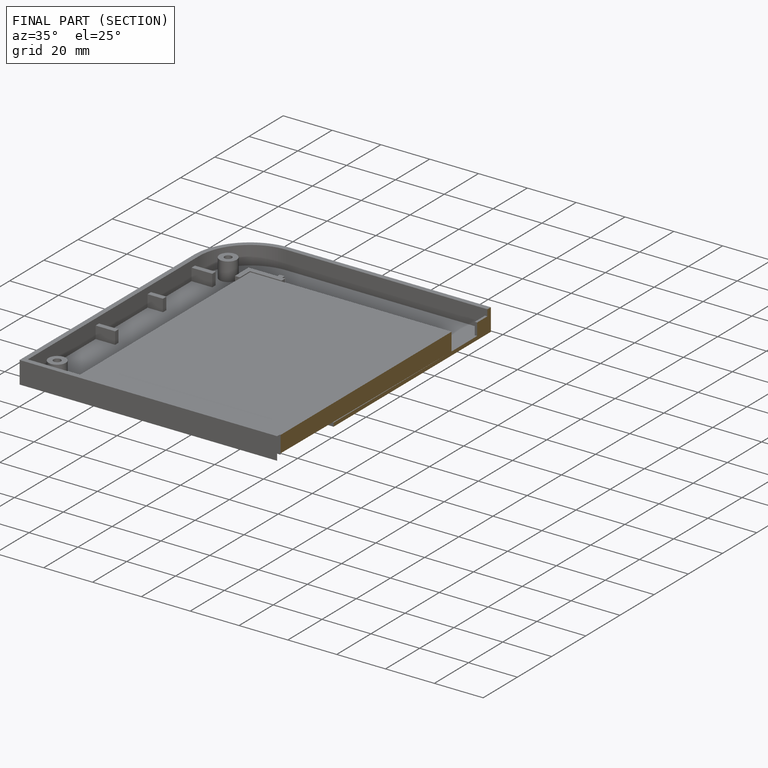
[diagram: finished part — half-section view (interior)]
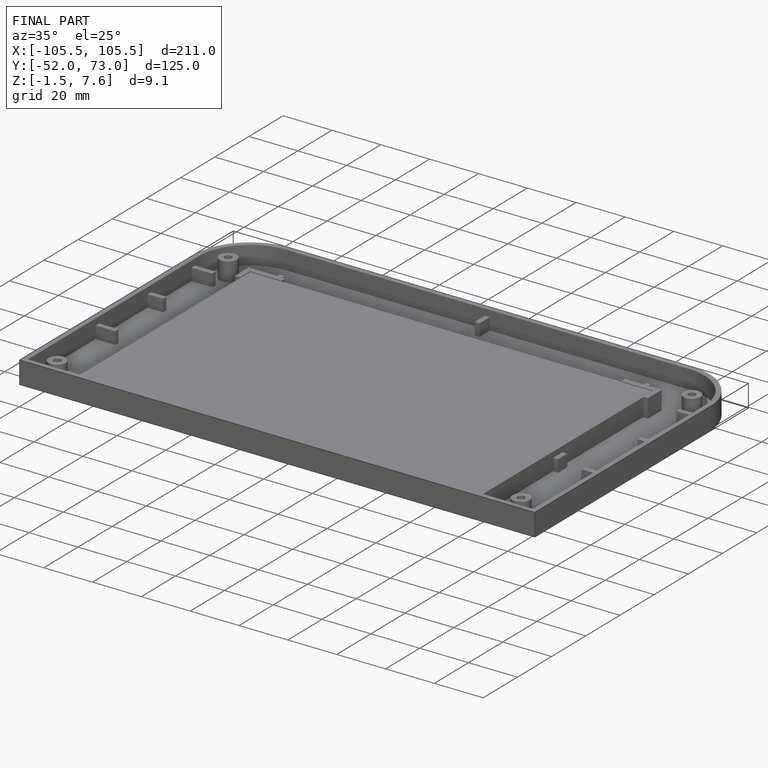
[diagram: finished part — iso view with bounding-box wireframe]
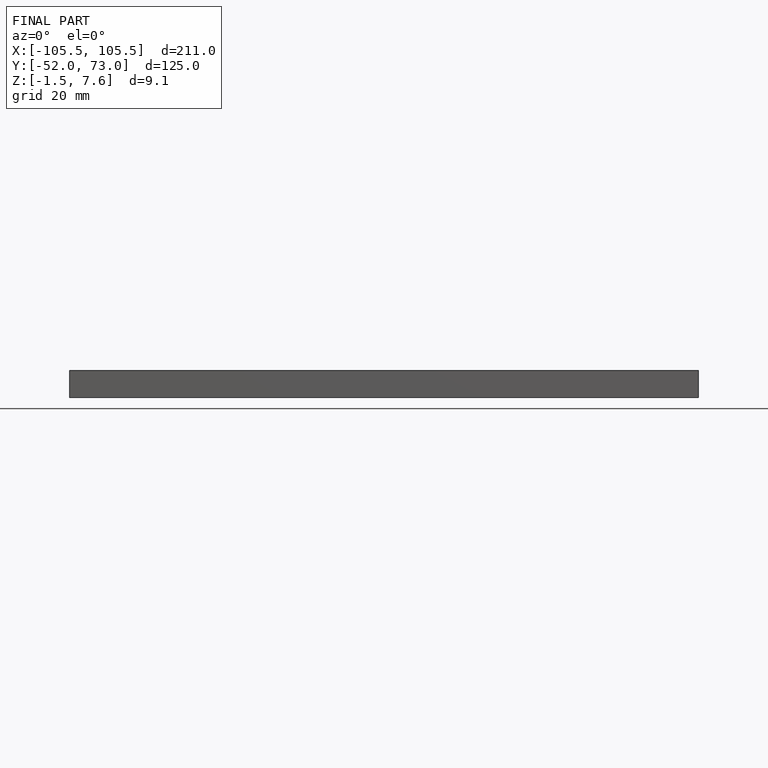
[diagram: finished part — front view with bounding-box wireframe]
